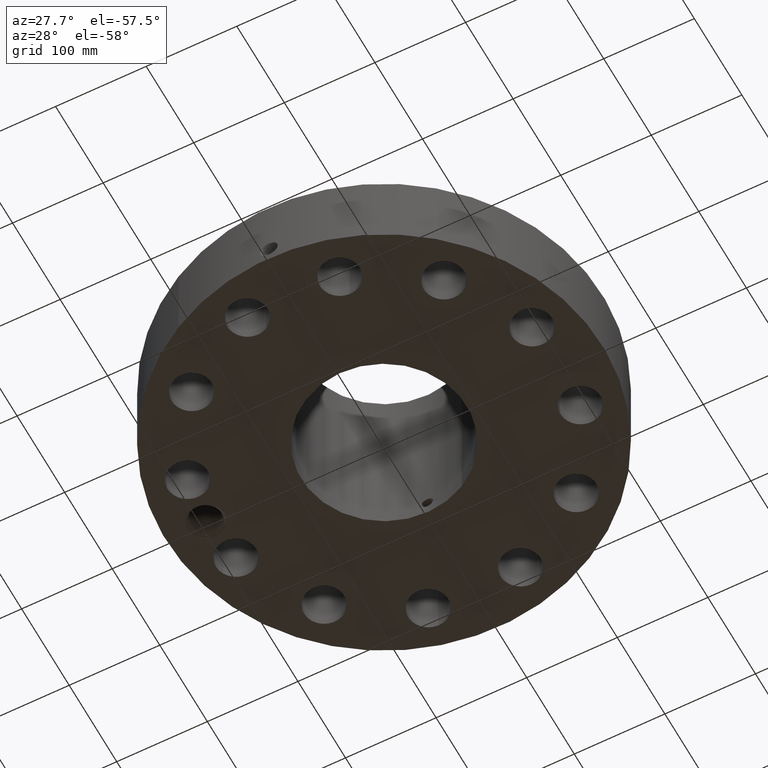
[diagram: clean part render]
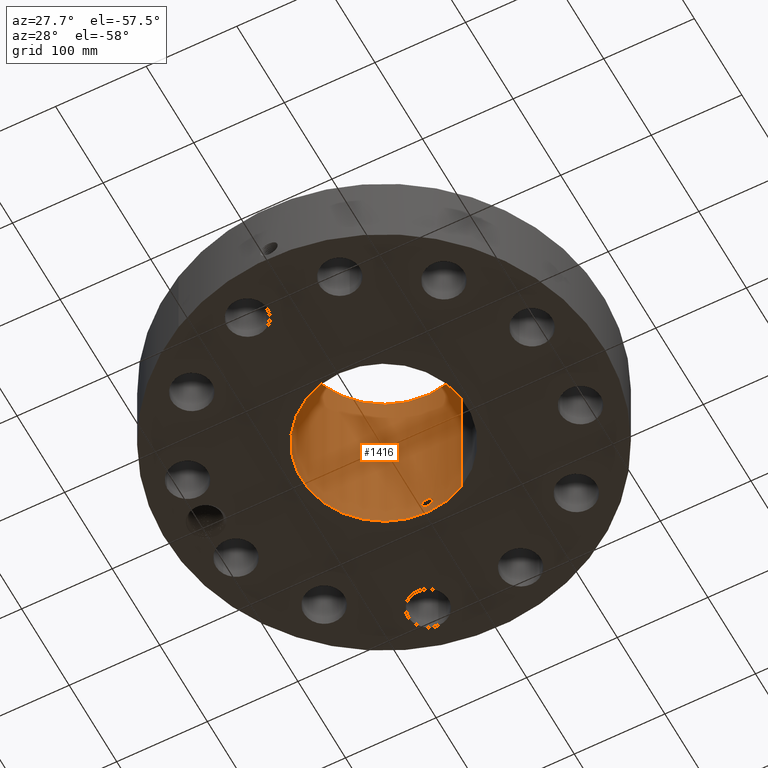
[diagram: same view with one face highlighted and labeled with its STEP entity id]
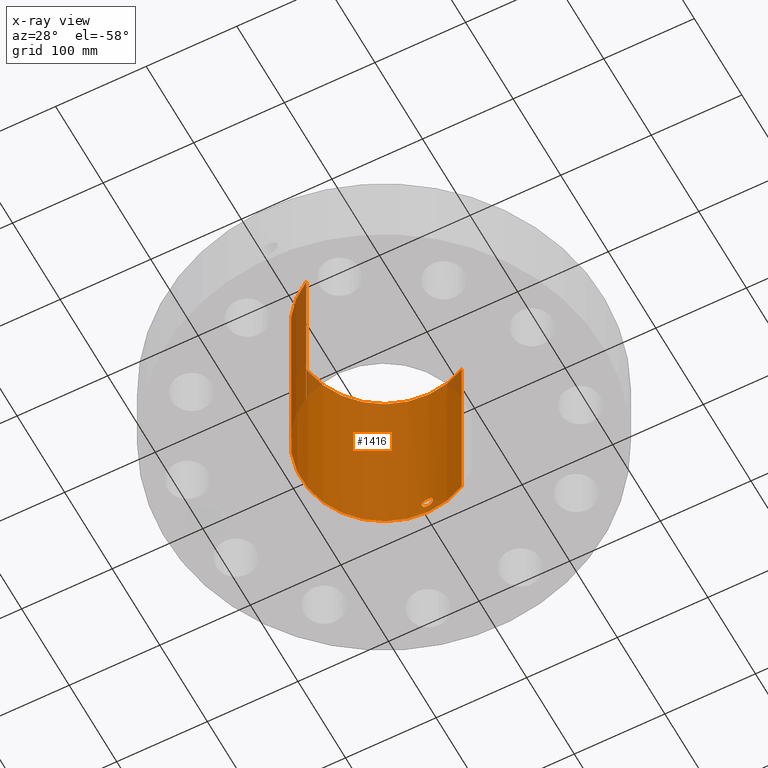
[diagram: x-ray of the same camera — body ghosted, the highlighted face saturated]
A machine part, auxiliary view. The second image highlights one B-rep face of the part: STEP entity #1416.
The next image is the same camera in x-ray: the body ghosted, the highlighted face saturated — about 8% of this face is hidden behind the body in this view.
In plain terms, the highlighted cylindrical surface (partial cylindrical patch) has radius 91.2749 mm, axis along (0, 0, -1).
Its self-contained STEP definition (entity closure, byte-faithful):
#271=AXIS2_PLACEMENT_3D('Circle Axis2P3D',#269,#270,$) ;
#1293=AXIS2_PLACEMENT_3D('Cylinder Axis2P3D',#1290,#1291,#1292) ;
#1365=AXIS2_PLACEMENT_3D('Circle Axis2P3D',#1363,#1364,$) ;
#264=CARTESIAN_POINT('Vertex',(1.72281567298,3.15359293617,0.250000000001)) ;
#266=CARTESIAN_POINT('Vertex',(-1.72281567298,-3.15359293617,0.250000000001)) ;
#269=CARTESIAN_POINT('Axis2P3D Location',(0.,0.,0.250000000001)) ;
#1290=CARTESIAN_POINT('Axis2P3D Location',(0.,0.,4.44000000002)) ;
#1299=CARTESIAN_POINT('Vertex',(1.72281567298,3.15359293617,8.63000000003)) ;
#1301=CARTESIAN_POINT('Vertex',(-1.72281567298,-3.15359293617,8.63000000003)) ;
#1304=CARTESIAN_POINT('Line Origine',(1.72281567298,3.15359293617,4.44000000002)) ;
#1309=CARTESIAN_POINT('Line Origine',(-1.72281567298,-3.15359293617,4.44000000002)) ;
#1363=CARTESIAN_POINT('Axis2P3D Location',(0.,0.,8.63000000003)) ;
#1375=CARTESIAN_POINT('Control Point',(0.219395640473,3.58679631469,1.05985638466)) ;
#1376=CARTESIAN_POINT('Control Point',(0.206922023213,3.58755929563,1.0826891879)) ;
#1377=CARTESIAN_POINT('Control Point',(0.191479901531,3.58844942635,1.10389601945)) ;
#1378=CARTESIAN_POINT('Control Point',(0.173349476305,3.58939784458,1.12296545243)) ;
#1379=CARTESIAN_POINT('Control Point',(0.112166482214,3.59213986085,1.17242802662)) ;
#1380=CARTESIAN_POINT('Control Point',(0.0350337598184,3.59392132419,1.19596128831)) ;
#1381=CARTESIAN_POINT('Control Point',(-0.0195054106625,3.59405531493,1.19761226752)) ;
#1382=CARTESIAN_POINT('Control Point',(-0.124074507281,3.59209719436,1.17249815441)) ;
#1383=CARTESIAN_POINT('Control Point',(-0.203109633091,3.5880392119,1.09965057162)) ;
#1384=CARTESIAN_POINT('Control Point',(-0.232103911184,3.5860387421,1.05347208459)) ;
#1385=CARTESIAN_POINT('Control Point',(-0.255822483038,3.58438825683,0.975301749992)) ;
#1386=CARTESIAN_POINT('Control Point',(-0.248314625641,3.58491023534,0.895877658871)) ;
#1387=CARTESIAN_POINT('Control Point',(-0.242080090679,3.5853501947,0.869264102457)) ;
#1388=CARTESIAN_POINT('Control Point',(-0.232335047039,3.58600484254,0.843829040196)) ;
#1389=CARTESIAN_POINT('Control Point',(-0.219395640473,3.58679631469,0.820143615352)) ;
#1390=CARTESIAN_POINT('Vertex',(0.219395640473,3.58679631469,1.05985638466)) ;
#1392=CARTESIAN_POINT('Vertex',(-0.219395640473,3.58679631469,0.820143615352)) ;
#1396=CARTESIAN_POINT('Control Point',(-0.219395640473,3.58679631469,0.820143615352)) ;
#1397=CARTESIAN_POINT('Control Point',(-0.206922023213,3.58755929563,0.797310812112)) ;
#1398=CARTESIAN_POINT('Control Point',(-0.191479901531,3.58844942635,0.776103980554)) ;
#1399=CARTESIAN_POINT('Control Point',(-0.173349476305,3.58939784458,0.757034547573)) ;
#1400=CARTESIAN_POINT('Control Point',(-0.112166482219,3.59213986085,0.707571973389)) ;
#1401=CARTESIAN_POINT('Control Point',(-0.0350337598311,3.59392132419,0.684038711697)) ;
#1402=CARTESIAN_POINT('Control Point',(0.0195054106784,3.59405531493,0.68238773249)) ;
#1403=CARTESIAN_POINT('Control Point',(0.124074507267,3.59209719436,0.707501845595)) ;
#1404=CARTESIAN_POINT('Control Point',(0.203109633061,3.5880392119,0.780349428361)) ;
#1405=CARTESIAN_POINT('Control Point',(0.232103911195,3.5860387421,0.826527915464)) ;
#1406=CARTESIAN_POINT('Control Point',(0.255822483037,3.58438825683,0.904698250038)) ;
#1407=CARTESIAN_POINT('Control Point',(0.248314625641,3.58491023534,0.984122341138)) ;
#1408=CARTESIAN_POINT('Control Point',(0.242080090679,3.5853501947,1.01073589755)) ;
#1409=CARTESIAN_POINT('Control Point',(0.232335047039,3.58600484254,1.03617095981)) ;
#1410=CARTESIAN_POINT('Control Point',(0.219395640473,3.58679631469,1.05985638466)) ;
#270=DIRECTION('Axis2P3D Direction',(0.,0.,-0.0393700787402)) ;
#1291=DIRECTION('Axis2P3D Direction',(0.,0.,-0.0393700787402)) ;
#1292=DIRECTION('Axis2P3D XDirection',(-0.0188750212049,-0.0345504945626,0.)) ;
#1305=DIRECTION('Vector Direction',(0.,0.,-0.0393700787402)) ;
#1310=DIRECTION('Vector Direction',(0.,0.,-0.0393700787402)) ;
#1364=DIRECTION('Axis2P3D Direction',(0.,0.,-0.0393700787402)) ;
#1306=VECTOR('Line Direction',#1305,0.0393700787402) ;
#1311=VECTOR('Line Direction',#1310,0.0393700787402) ;
#1369=ORIENTED_EDGE('',*,*,#1367,.F.) ;
#1370=ORIENTED_EDGE('',*,*,#1313,.T.) ;
#1371=ORIENTED_EDGE('',*,*,#273,.T.) ;
#1372=ORIENTED_EDGE('',*,*,#1308,.F.) ;
#1413=ORIENTED_EDGE('',*,*,#1394,.F.) ;
#1414=ORIENTED_EDGE('',*,*,#1411,.F.) ;
#1415=FACE_BOUND('',#1412,.T.) ;
#1416=ADVANCED_FACE('PartBody',(#1373,#1415),#1294,.F.) ;
#1374=B_SPLINE_CURVE_WITH_KNOTS('',5,(#1375,#1376,#1377,#1378,#1379,#1380,#1381,#1382,#1383,#1384,#1385,#1386,#1387,#1388,#1389),.UNSPECIFIED.,.F.,.U.,(6,3,3,3,6),(0.,4.67494632112,14.0210383862,23.3709677775,28.2204857528),.UNSPECIFIED.) ;
#1395=B_SPLINE_CURVE_WITH_KNOTS('',5,(#1396,#1397,#1398,#1399,#1400,#1401,#1402,#1403,#1404,#1405,#1406,#1407,#1408,#1409,#1410),.UNSPECIFIED.,.F.,.U.,(6,3,3,3,6),(0.,4.67494632121,14.021038385,23.3709677727,28.220485748),.UNSPECIFIED.) ;
#272=CIRCLE('generated circle',#271,3.59350000001) ;
#1366=CIRCLE('generated circle',#1365,3.59350000001) ;
#1294=CYLINDRICAL_SURFACE('generated cylinder',#1293,3.59350000001) ;
#273=EDGE_CURVE('',#267,#265,#272,.T.) ;
#1308=EDGE_CURVE('',#1300,#265,#1307,.T.) ;
#1313=EDGE_CURVE('',#1302,#267,#1312,.T.) ;
#1367=EDGE_CURVE('',#1302,#1300,#1366,.T.) ;
#1394=EDGE_CURVE('',#1391,#1393,#1374,.T.) ;
#1411=EDGE_CURVE('',#1393,#1391,#1395,.T.) ;
#1368=EDGE_LOOP('',(#1369,#1370,#1371,#1372)) ;
#1412=EDGE_LOOP('',(#1413,#1414)) ;
#1373=FACE_OUTER_BOUND('',#1368,.T.) ;
#1307=LINE('Line',#1304,#1306) ;
#1312=LINE('Line',#1309,#1311) ;
#265=VERTEX_POINT('',#264) ;
#267=VERTEX_POINT('',#266) ;
#1300=VERTEX_POINT('',#1299) ;
#1302=VERTEX_POINT('',#1301) ;
#1391=VERTEX_POINT('',#1390) ;
#1393=VERTEX_POINT('',#1392) ;